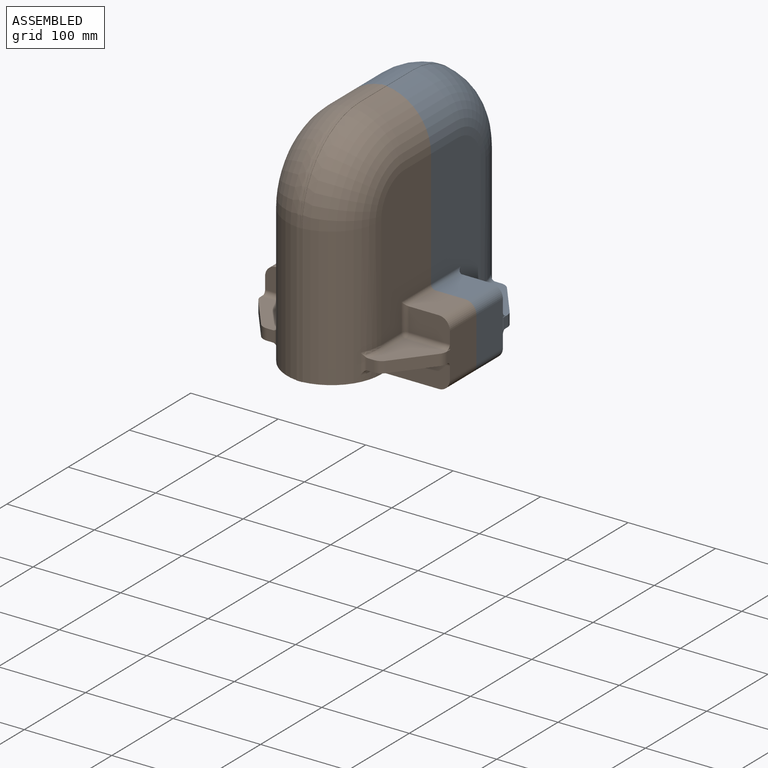
[diagram: assembled view]
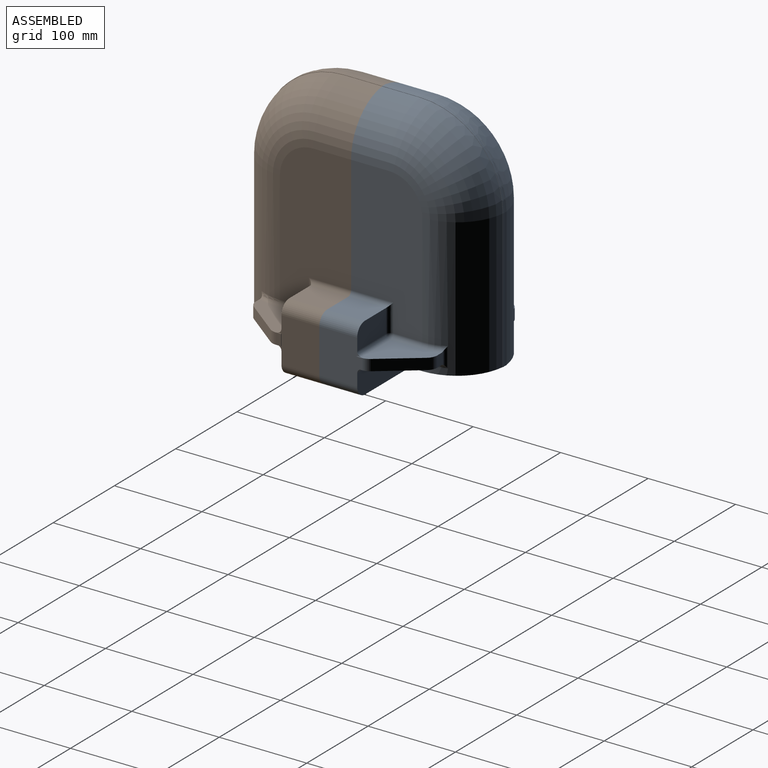
[diagram: assembled view, second angle]
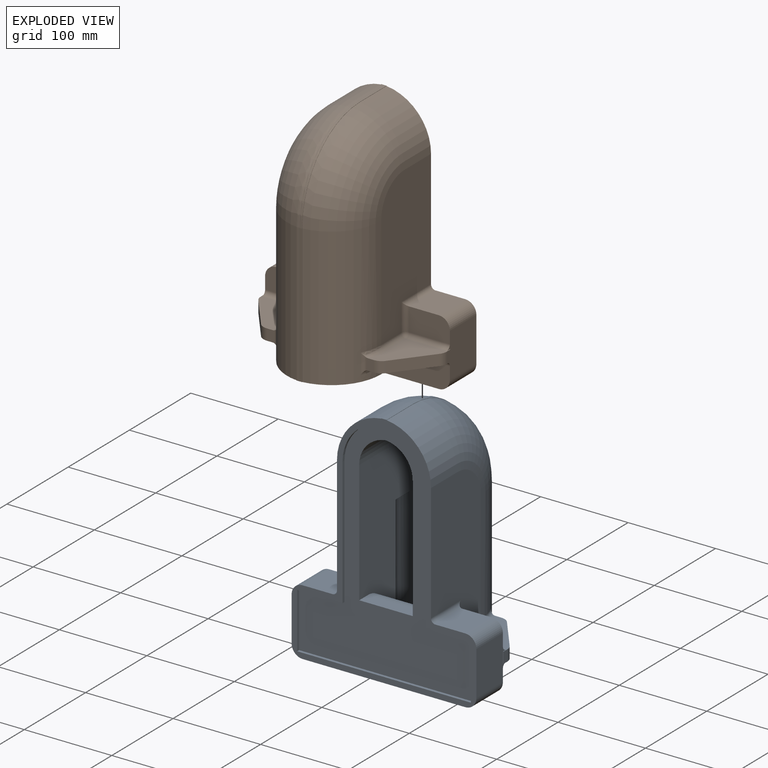
[diagram: exploded view]
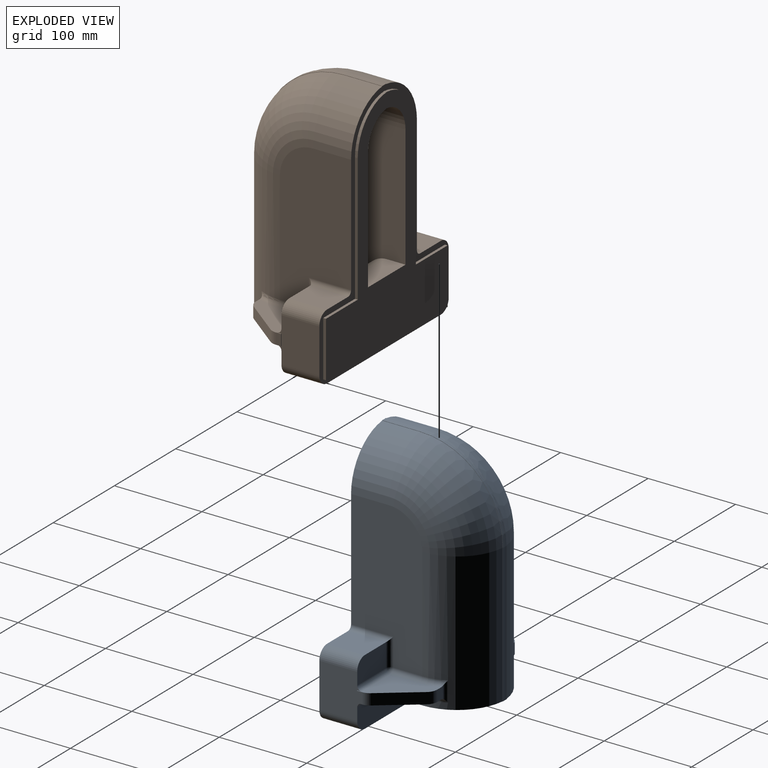
[diagram: exploded view, second angle]
ASSEMBLY  parts=2 mates=3
PART A: 99 faces, bbox 212.7x138.2x272.8 mm
  f0: plane 61.14x14.72mm, normal (0,0,1), area 899.9mm2, adj f1,f2,f66,f98
  f1: plane 185.4x78.22mm, normal (-1,0,0), area 10110.6mm2, adj f0,f3,f10,f11,f21,f31,f35,f36
  f2: plane 185.4x78.22mm, normal (1,0,0), area 12497.1mm2, adj f0,f4,f11,f21,f23,f32,f66,f98
  f3: cylinder r=33.63mm len=40.12mm, axis (0,-1,0), area 1996.4mm2, adj f1,f4,f31,f66
  f4: cylinder r=33.63mm len=40.12mm, axis (0,-1,0), area 1996.4mm2, adj f2,f3,f32,f66
  f5: plane 43.29x34.05mm, normal (0,0,1), area 1474.3mm2, adj f12,f15,f68,f82
  f6: plane 211.2x26.67mm, normal (0,-1,0), area 4096.1mm2, adj f14,f17,f28,f67,f69,f79,f83,f86
  f7: plane 33.02x7.39mm, normal (1,0,0), area 244mm2, adj f19,f24,f93,f97
  f8: plane 46.75x26.67mm, normal (0,-1,0), area 1212.3mm2, adj f14,f16,f70,f72,f73
  f9: plane 33.02x7.39mm, normal (-1,0,0), area 244mm2, adj f13,f19,f80,f83
  f10: cylinder r=33.63mm len=147.3mm, axis (0,0,-1), area 1227.5mm2, adj f1,f21,f23,f31,f35,f36
  f11: plane 61.14x20.26mm, normal (0,-1,0), area 1238.6mm2, adj f1,f2,f21,f98
  f12: plane 46.75x26.67mm, normal (0,-1,0), area 1212.3mm2, adj f5,f28,f68,f84,f85
  f13: cylinder r=56.82mm len=158.56mm, axis (0,0,-1), area 12582.9mm2, adj f9,f18,f19,f27,f33,f76,f77,f78
  f14: plane 50.8x48.37mm, normal (-1,0,0), area 2210.4mm2, adj f6,f8,f15,f37,f41,f42,f69,f70
  f15: plane 272.77x211.2mm, normal (0,1,0), area 5566.2mm2, adj f5,f14,f16,f17,f18,f20,f25,f27
  f16: plane 43.29x34.05mm, normal (0,0,1), area 1474.3mm2, adj f8,f15,f70,f71
  f17: plane 185.8x43.29mm, normal (0,0,-1), area 8043.7mm2, adj f6,f15,f67,f69
  f18: plane 166.42x81.39mm, normal (-1,0,0), area 11697.8mm2, adj f13,f15,f33,f53,f71,f73,f75
  f19: plane 107.53x89.84mm, normal (0,0,-1), area 4789.9mm2, adj f7,f9,f13,f20,f22,f24,f26,f27
  f20: plane 253.49x138.21mm, normal (1,0,0), area 115.7mm2, adj f15,f19,f22,f24,f29,f30,f55,f56
  f21: plane 71.59x61.14mm, normal (0,0,1), area 675.4mm2, adj f1,f2,f10,f11,f23,f35
  f22: cylinder r=56.82mm len=158.56mm, axis (0,0,-1), area 485mm2, adj f19,f20,f26,f29
  f23: cylinder r=33.63mm len=147.3mm, axis (0,0,-1), area 7330.2mm2, adj f2,f10,f21,f32
  f24: cylinder r=56.82mm len=158.56mm, axis (0,0,-1), area 12582.9mm2, adj f7,f19,f20,f25,f30,f91,f94,f96
  f25: plane 166.42x81.39mm, normal (1,0,0), area 11697.8mm2, adj f15,f24,f30,f56,f82,f84,f89
  f26: cylinder r=56.82mm len=158.56mm, axis (0,0,-1), area 485mm2, adj f19,f22,f27,f34
  f27: plane 253.49x138.21mm, normal (-1,0,0), area 115.7mm2, adj f13,f15,f19,f26,f33,f34,f53,f54
  f28: plane 50.8x48.37mm, normal (1,0,0), area 2210.4mm2, adj f6,f12,f15,f45,f49,f50,f67,f68
  f29: torus R=38.1mm, axis (1,0,0), area 456mm2, adj f20,f22,f34,f55
  f30: torus R=38.1mm, axis (1,0,0), area 9500.7mm2, adj f20,f24,f25,f56
  f31: torus R=38.1mm, axis (1,0,0), area 4593.1mm2, adj f1,f3,f10,f32
  f32: torus R=38.1mm, axis (1,0,0), area 4593.1mm2, adj f2,f4,f23,f31
  f33: torus R=38.1mm, axis (1,0,0), area 9500.7mm2, adj f13,f18,f27,f53
  f34: torus R=38.1mm, axis (1,0,0), area 456mm2, adj f26,f27,f29,f54
  f35: cylinder r=33.32mm len=138.26mm, axis (0,0,-1), area 11712.7mm2, adj f1,f10,f19,f21,f36,f88
  f36: plane 52.11x34.68mm, normal (0,0,-1), area 262.5mm2, adj f1,f10,f35
  f37: plane 12.7x0.72mm, normal (0,1,0), area 9.2mm2, adj f14,f38,f41,f42
  f38: plane 12.7x6.05mm, normal (-1,0,0), area 76.9mm2, adj f37,f41,f42,f43
  f39: plane 41.77x32.38mm, normal (-0.79,-0.61,0), area 671.2mm2, adj f41,f42,f43,f44
  f40: plane 13.6x8.86mm, normal (0,-1,0), area 113mm2, adj f41,f42,f44,f76,f77,f78
  f41: plane 60.53x51.68mm, normal (0,0,1), area 1685.9mm2, adj f14,f37,f38,f39,f40,f43,f44,f72
  f42: plane 60.53x51.68mm, normal (0,0,-1), area 1685.9mm2, adj f14,f37,f38,f39,f40,f43,f44,f78
  f43: cylinder r=12.7mm len=12.7mm, axis (0,0,-1), area 106.3mm2, adj f38,f39,f41,f42
  f44: cylinder r=12.7mm len=12.7mm, axis (0,0,-1), area 147mm2, adj f39,f40,f41,f42
  f45: plane 12.7x0.72mm, normal (0,1,0), area 9.2mm2, adj f28,f48,f49,f50
  f46: plane 13.6x8.86mm, normal (0,-1,0), area 113mm2, adj f49,f50,f52,f91,f94,f96
  f47: plane 41.77x32.38mm, normal (0.79,-0.61,0), area 671.2mm2, adj f49,f50,f51,f52
  f48: plane 12.7x6.05mm, normal (1,0,0), area 76.9mm2, adj f45,f49,f50,f51
  f49: plane 60.53x51.68mm, normal (0,0,1), area 1685.9mm2, adj f28,f45,f46,f47,f48,f51,f52,f85
  f50: plane 60.53x51.68mm, normal (0,0,-1), area 1685.9mm2, adj f28,f45,f46,f47,f48,f51,f52,f92
  f51: cylinder r=12.7mm len=12.7mm, axis (0,0,-1), area 106.3mm2, adj f47,f48,f49,f50
  f52: cylinder r=12.7mm len=12.7mm, axis (0,0,-1), area 147mm2, adj f46,f47,f49,f50
  f53: cylinder r=56.82mm len=56.49mm, axis (0,-1,0), area 3598.8mm2, adj f15,f18,f27,f33
  f54: cylinder r=56.82mm len=43.29mm, axis (0,-1,0), area 132.4mm2, adj f15,f27,f34,f55
  f55: cylinder r=56.82mm len=43.29mm, axis (0,-1,0), area 132.4mm2, adj f15,f20,f29,f54
  f56: cylinder r=56.82mm len=56.49mm, axis (0,-1,0), area 3598.8mm2, adj f15,f20,f25,f30
  f57: cylinder r=50.47mm len=50.38mm, axis (0,1,0), area 242mm2, adj f15,f58,f65,f66
  f58: cylinder r=50.47mm len=50.38mm, axis (0,1,0), area 242mm2, adj f15,f57,f59,f66
  f59: plane 146.1x3.18mm, normal (-1,0,0), area 463.9mm2, adj f15,f58,f60,f66
  f60: plane 51.83x3.18mm, normal (0,0,-1), area 164.6mm2, adj f15,f59,f61,f66
  f61: plane 63.5x3.18mm, normal (-1,0,0), area 201.6mm2, adj f15,f60,f62,f66
  f62: plane 198.5x3.18mm, normal (0,0,1), area 630.2mm2, adj f15,f61,f63,f66
  f63: plane 63.5x3.18mm, normal (1,0,0), area 201.6mm2, adj f15,f62,f64,f66
  f64: plane 51.83x3.18mm, normal (0,0,-1), area 164.6mm2, adj f15,f63,f65,f66
  f65: plane 146.1x3.18mm, normal (1,0,0), area 463.9mm2, adj f15,f57,f64,f66
  f66: plane 259.98x198.5mm, normal (0,1,0), area 20035.6mm2, adj f0,f1,f2,f3,f4,f57,f58,f59
  f67: cylinder r=12.7mm len=43.29mm, axis (0,-1,0), area 863.7mm2, adj f6,f15,f17,f28
  f68: cylinder r=12.7mm len=43.29mm, axis (0,1,0), area 863.7mm2, adj f5,f12,f15,f28
  f69: cylinder r=12.7mm len=43.29mm, axis (0,-1,0), area 863.7mm2, adj f6,f14,f15,f17
  f70: cylinder r=12.7mm len=43.29mm, axis (0,1,0), area 863.7mm2, adj f8,f14,f15,f16
  f71: cylinder r=5.08mm len=48.37mm, axis (0,1,0), area 360.2mm2, adj f15,f16,f18,f73
  f72: cylinder r=5.08mm len=46.75mm, axis (-1,0,0), area 373.1mm2, adj f8,f14,f41,f74
  f73: cylinder r=5.08mm len=31.75mm, axis (0,0,1), area 227.5mm2, adj f8,f18,f71,f74
  f74: sphere r=5.08mm, area 40.5mm2, adj f72,f73,f75
  f75: cylinder r=5.08mm len=33.02mm, axis (0,-1,0), area 263.5mm2, adj f18,f41,f74,f76
  f76: torus R=61.9mm, axis (0,0,1), area 190mm2, adj f13,f40,f41,f75,f77
  f77: cylinder r=5.08mm len=22.86mm, axis (0,0,-1), area 99.4mm2, adj f13,f40,f76,f78
  f78: torus R=61.9mm, axis (0,0,1), area 190mm2, adj f13,f40,f42,f77,f80
  f79: cylinder r=5.08mm len=46.75mm, axis (1,0,0), area 373.1mm2, adj f6,f14,f42,f81
  f80: cylinder r=5.08mm len=33.02mm, axis (0,1,0), area 263.5mm2, adj f9,f42,f78,f81
  f81: sphere r=5.08mm, area 40.5mm2, adj f79,f80,f83
  f82: cylinder r=5.08mm len=48.37mm, axis (0,1,0), area 360.2mm2, adj f5,f15,f25,f84
  f83: cylinder r=5.08mm len=12.47mm, axis (0,0,1), area 73.7mm2, adj f6,f9,f81,f86
  f84: cylinder r=5.08mm len=31.75mm, axis (0,0,1), area 227.5mm2, adj f12,f25,f82,f87
  f85: cylinder r=5.08mm len=46.75mm, axis (1,0,0), area 373.1mm2, adj f12,f28,f49,f87
  f86: cylinder r=5.08mm len=57.45mm, axis (-1,0,0), area 432.6mm2, adj f6,f19,f83,f88
  f87: sphere r=5.08mm, area 40.5mm2, adj f84,f85,f89
  f88: bspline ~12.88x5.5mm, area 69.3mm2, adj f6,f35,f86,f90
  f89: cylinder r=5.08mm len=33.02mm, axis (0,1,0), area 263.5mm2, adj f25,f49,f87,f91
  f90: cylinder r=5.08mm len=51.33mm, axis (-1,0,0), area 383.8mm2, adj f6,f19,f88,f93
  f91: torus R=61.9mm, axis (0,0,1), area 190mm2, adj f24,f46,f49,f89,f94
  f92: cylinder r=5.08mm len=46.75mm, axis (-1,0,0), area 373.1mm2, adj f6,f28,f50,f95
  f93: cylinder r=5.08mm len=12.47mm, axis (0,0,1), area 73.7mm2, adj f6,f7,f90,f95
  f94: cylinder r=5.08mm len=22.86mm, axis (0,0,-1), area 99.4mm2, adj f24,f46,f91,f96
  f95: sphere r=5.08mm, area 40.5mm2, adj f92,f93,f97
  f96: torus R=61.9mm, axis (0,0,1), area 190mm2, adj f24,f46,f50,f94,f97
  f97: cylinder r=5.08mm len=33.02mm, axis (0,-1,0), area 263.5mm2, adj f7,f50,f95,f96
  f98: cylinder r=25.4mm len=61.14mm, axis (-1,0,0), area 2439.5mm2, adj f0,f1,f2,f11
PART B: 99 faces, bbox 212.7x141.4x272.8 mm
  f0: plane 61.14x21.07mm, normal (0,0,1), area 1288.2mm2, adj f1,f2,f88,f98
  f1: plane 185.4x84.57mm, normal (-1,0,0), area 10998mm2, adj f0,f3,f10,f11,f21,f31,f35,f36
  f2: plane 185.4x84.57mm, normal (1,0,0), area 13384.5mm2, adj f0,f4,f11,f21,f23,f32,f88,f98
  f3: cylinder r=33.63mm len=46.47mm, axis (0,-1,0), area 2312.4mm2, adj f1,f4,f31,f98
  f4: cylinder r=33.63mm len=46.47mm, axis (0,-1,0), area 2312.4mm2, adj f2,f3,f32,f98
  f5: plane 43.29x34.05mm, normal (0,0,1), area 1474.3mm2, adj f12,f15,f58,f72
  f6: plane 211.2x26.67mm, normal (0,-1,0), area 4096.1mm2, adj f14,f17,f28,f57,f59,f69,f73,f76
  f7: plane 33.02x7.39mm, normal (1,0,0), area 244mm2, adj f19,f24,f83,f87
  f8: plane 46.75x26.67mm, normal (0,-1,0), area 1212.3mm2, adj f14,f16,f60,f62,f63
  f9: plane 33.02x7.39mm, normal (-1,0,0), area 244mm2, adj f13,f19,f70,f73
  f10: cylinder r=33.63mm len=147.3mm, axis (0,0,-1), area 1227.5mm2, adj f1,f21,f23,f31,f35,f36
  f11: plane 61.14x20.26mm, normal (0,-1,0), area 1238.6mm2, adj f1,f2,f21,f88
  f12: plane 46.75x26.67mm, normal (0,-1,0), area 1212.3mm2, adj f5,f28,f58,f74,f75
  f13: cylinder r=56.82mm len=158.56mm, axis (0,0,-1), area 12582.9mm2, adj f9,f18,f19,f27,f33,f66,f67,f68
  f14: plane 50.8x48.37mm, normal (-1,0,0), area 2210.4mm2, adj f6,f8,f15,f37,f41,f42,f59,f60
  f15: plane 272.77x211.2mm, normal (0,1,0), area 5566.2mm2, adj f5,f14,f16,f17,f18,f20,f25,f27
  f16: plane 43.29x34.05mm, normal (0,0,1), area 1474.3mm2, adj f8,f15,f60,f61
  f17: plane 185.8x43.29mm, normal (0,0,-1), area 8043.7mm2, adj f6,f15,f57,f59
  f18: plane 166.42x81.39mm, normal (-1,0,0), area 11697.8mm2, adj f13,f15,f33,f53,f61,f63,f65
  f19: plane 107.53x89.84mm, normal (0,0,-1), area 4789.9mm2, adj f7,f9,f13,f20,f22,f24,f26,f27
  f20: plane 253.49x138.21mm, normal (1,0,0), area 115.7mm2, adj f15,f19,f22,f24,f29,f30,f55,f56
  f21: plane 71.59x61.14mm, normal (0,0,1), area 675.4mm2, adj f1,f2,f10,f11,f23,f35
  f22: cylinder r=56.82mm len=158.56mm, axis (0,0,-1), area 485mm2, adj f19,f20,f26,f29
  f23: cylinder r=33.63mm len=147.3mm, axis (0,0,-1), area 7330.2mm2, adj f2,f10,f21,f32
  f24: cylinder r=56.82mm len=158.56mm, axis (0,0,-1), area 12582.9mm2, adj f7,f19,f20,f25,f30,f81,f84,f86
  f25: plane 166.42x81.39mm, normal (1,0,0), area 11697.8mm2, adj f15,f24,f30,f56,f72,f74,f79
  f26: cylinder r=56.82mm len=158.56mm, axis (0,0,-1), area 485mm2, adj f19,f22,f27,f34
  f27: plane 253.49x138.21mm, normal (-1,0,0), area 115.7mm2, adj f13,f15,f19,f26,f33,f34,f53,f54
  f28: plane 50.8x48.37mm, normal (1,0,0), area 2210.4mm2, adj f6,f12,f15,f45,f49,f50,f57,f58
  f29: torus R=38.1mm, axis (1,0,0), area 456mm2, adj f20,f22,f34,f55
  f30: torus R=38.1mm, axis (1,0,0), area 9500.7mm2, adj f20,f24,f25,f56
  f31: torus R=38.1mm, axis (1,0,0), area 4593.1mm2, adj f1,f3,f10,f32
  f32: torus R=38.1mm, axis (1,0,0), area 4593.1mm2, adj f2,f4,f23,f31
  f33: torus R=38.1mm, axis (1,0,0), area 9500.7mm2, adj f13,f18,f27,f53
  f34: torus R=38.1mm, axis (1,0,0), area 456mm2, adj f26,f27,f29,f54
  f35: cylinder r=33.32mm len=138.26mm, axis (0,0,-1), area 11712.7mm2, adj f1,f10,f19,f21,f36,f78
  f36: plane 52.11x34.68mm, normal (0,0,-1), area 262.5mm2, adj f1,f10,f35
  f37: plane 12.7x0.72mm, normal (0,1,0), area 9.2mm2, adj f14,f38,f41,f42
  f38: plane 12.7x6.05mm, normal (-1,0,0), area 76.9mm2, adj f37,f41,f42,f43
  f39: plane 41.77x32.38mm, normal (-0.79,-0.61,0), area 671.2mm2, adj f41,f42,f43,f44
  f40: plane 13.6x8.86mm, normal (0,-1,0), area 113mm2, adj f41,f42,f44,f66,f67,f68
  f41: plane 60.53x51.68mm, normal (0,0,1), area 1685.9mm2, adj f14,f37,f38,f39,f40,f43,f44,f62
  f42: plane 60.53x51.68mm, normal (0,0,-1), area 1685.9mm2, adj f14,f37,f38,f39,f40,f43,f44,f68
  f43: cylinder r=12.7mm len=12.7mm, axis (0,0,-1), area 106.3mm2, adj f38,f39,f41,f42
  f44: cylinder r=12.7mm len=12.7mm, axis (0,0,-1), area 147mm2, adj f39,f40,f41,f42
  f45: plane 12.7x0.72mm, normal (0,1,0), area 9.2mm2, adj f28,f48,f49,f50
  f46: plane 13.6x8.86mm, normal (0,-1,0), area 113mm2, adj f49,f50,f52,f81,f84,f86
  f47: plane 41.77x32.38mm, normal (0.79,-0.61,0), area 671.2mm2, adj f49,f50,f51,f52
  f48: plane 12.7x6.05mm, normal (1,0,0), area 76.9mm2, adj f45,f49,f50,f51
  f49: plane 60.53x51.68mm, normal (0,0,1), area 1685.9mm2, adj f28,f45,f46,f47,f48,f51,f52,f75
  f50: plane 60.53x51.68mm, normal (0,0,-1), area 1685.9mm2, adj f28,f45,f46,f47,f48,f51,f52,f82
  f51: cylinder r=12.7mm len=12.7mm, axis (0,0,-1), area 106.3mm2, adj f47,f48,f49,f50
  f52: cylinder r=12.7mm len=12.7mm, axis (0,0,-1), area 147mm2, adj f46,f47,f49,f50
  f53: cylinder r=56.82mm len=56.49mm, axis (0,-1,0), area 3598.8mm2, adj f15,f18,f27,f33
  f54: cylinder r=56.82mm len=43.29mm, axis (0,-1,0), area 132.4mm2, adj f15,f27,f34,f55
  f55: cylinder r=56.82mm len=43.29mm, axis (0,-1,0), area 132.4mm2, adj f15,f20,f29,f54
  f56: cylinder r=56.82mm len=56.49mm, axis (0,-1,0), area 3598.8mm2, adj f15,f20,f25,f30
  f57: cylinder r=12.7mm len=43.29mm, axis (0,-1,0), area 863.7mm2, adj f6,f15,f17,f28
  f58: cylinder r=12.7mm len=43.29mm, axis (0,1,0), area 863.7mm2, adj f5,f12,f15,f28
  f59: cylinder r=12.7mm len=43.29mm, axis (0,-1,0), area 863.7mm2, adj f6,f14,f15,f17
  f60: cylinder r=12.7mm len=43.29mm, axis (0,1,0), area 863.7mm2, adj f8,f14,f15,f16
  f61: cylinder r=5.08mm len=48.37mm, axis (0,1,0), area 360.2mm2, adj f15,f16,f18,f63
  f62: cylinder r=5.08mm len=46.75mm, axis (-1,0,0), area 373.1mm2, adj f8,f14,f41,f64
  f63: cylinder r=5.08mm len=31.75mm, axis (0,0,1), area 227.5mm2, adj f8,f18,f61,f64
  f64: sphere r=5.08mm, area 40.5mm2, adj f62,f63,f65
  f65: cylinder r=5.08mm len=33.02mm, axis (0,-1,0), area 263.5mm2, adj f18,f41,f64,f66
  f66: torus R=61.9mm, axis (0,0,1), area 190mm2, adj f13,f40,f41,f65,f67
  f67: cylinder r=5.08mm len=22.86mm, axis (0,0,-1), area 99.4mm2, adj f13,f40,f66,f68
  f68: torus R=61.9mm, axis (0,0,1), area 190mm2, adj f13,f40,f42,f67,f70
  f69: cylinder r=5.08mm len=46.75mm, axis (1,0,0), area 373.1mm2, adj f6,f14,f42,f71
  f70: cylinder r=5.08mm len=33.02mm, axis (0,1,0), area 263.5mm2, adj f9,f42,f68,f71
  f71: sphere r=5.08mm, area 40.5mm2, adj f69,f70,f73
  f72: cylinder r=5.08mm len=48.37mm, axis (0,1,0), area 360.2mm2, adj f5,f15,f25,f74
  f73: cylinder r=5.08mm len=12.47mm, axis (0,0,1), area 73.7mm2, adj f6,f9,f71,f76
  f74: cylinder r=5.08mm len=31.75mm, axis (0,0,1), area 227.5mm2, adj f12,f25,f72,f77
  f75: cylinder r=5.08mm len=46.75mm, axis (1,0,0), area 373.1mm2, adj f12,f28,f49,f77
  f76: cylinder r=5.08mm len=57.45mm, axis (-1,0,0), area 432.6mm2, adj f6,f19,f73,f78
  f77: sphere r=5.08mm, area 40.5mm2, adj f74,f75,f79
  f78: bspline ~12.88x5.5mm, area 69.3mm2, adj f6,f35,f76,f80
  f79: cylinder r=5.08mm len=33.02mm, axis (0,1,0), area 263.5mm2, adj f25,f49,f77,f81
  f80: cylinder r=5.08mm len=51.33mm, axis (-1,0,0), area 383.8mm2, adj f6,f19,f78,f83
  f81: torus R=61.9mm, axis (0,0,1), area 190mm2, adj f24,f46,f49,f79,f84
  f82: cylinder r=5.08mm len=46.75mm, axis (-1,0,0), area 373.1mm2, adj f6,f28,f50,f85
  f83: cylinder r=5.08mm len=12.47mm, axis (0,0,1), area 73.7mm2, adj f6,f7,f80,f85
  f84: cylinder r=5.08mm len=22.86mm, axis (0,0,-1), area 99.4mm2, adj f24,f46,f81,f86
  f85: sphere r=5.08mm, area 40.5mm2, adj f82,f83,f87
  f86: torus R=61.9mm, axis (0,0,1), area 190mm2, adj f24,f46,f50,f84,f87
  f87: cylinder r=5.08mm len=33.02mm, axis (0,-1,0), area 263.5mm2, adj f7,f50,f85,f86
  f88: cylinder r=25.4mm len=61.14mm, axis (-1,0,0), area 2439.5mm2, adj f0,f1,f2,f11
  f89: plane 146.1x3.18mm, normal (-1,0,0), area 463.9mm2, adj f15,f95,f96,f98
  f90: plane 146.1x3.18mm, normal (1,0,0), area 463.9mm2, adj f15,f91,f97,f98
  f91: plane 51.83x3.18mm, normal (0,0,1), area 164.6mm2, adj f15,f90,f92,f98
  f92: plane 63.5x3.18mm, normal (1,0,0), area 201.6mm2, adj f15,f91,f93,f98
  f93: plane 198.5x3.18mm, normal (0,0,-1), area 630.2mm2, adj f15,f92,f94,f98
  f94: plane 63.5x3.18mm, normal (-1,0,0), area 201.6mm2, adj f15,f93,f95,f98
  f95: plane 51.83x3.18mm, normal (0,0,1), area 164.6mm2, adj f15,f89,f94,f98
  f96: cylinder r=50.47mm len=50.38mm, axis (0,-1,0), area 242mm2, adj f15,f89,f97,f98
  f97: cylinder r=50.47mm len=50.38mm, axis (0,-1,0), area 242mm2, adj f15,f90,f96,f98
  f98: plane 259.98x198.5mm, normal (0,1,0), area 20035.6mm2, adj f0,f1,f2,f3,f4,f89,f90,f91
PLACE A rot(axis=(0,0,1),180deg) t=(25.03,209.14,-302.29)mm
PLACE B t=(25.03,122.55,-302.29)mm
MATE parallel B.f17 <-> A.f17  axis (0,0,-1) through (25.03,144.2,-340.39)mm
MATE parallel A.f18 <-> B.f25  axis (1,0,0) through (78.79,207.85,-200.8)mm
MATE planar A.f66 <-> B.f98  axis (0,-1,0) through (25.03,169.02,-264.19)mm
